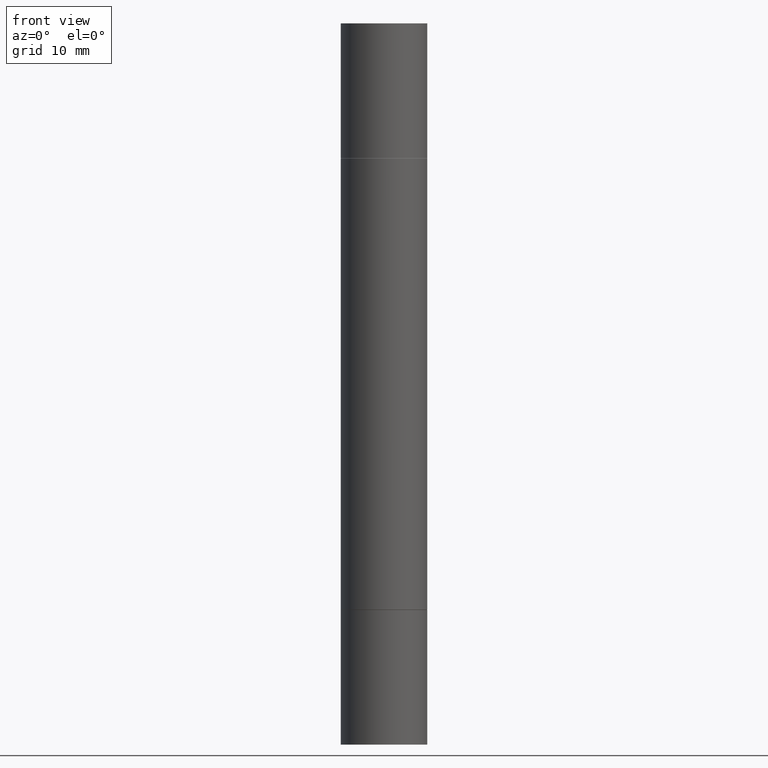
[diagram: clean part render]
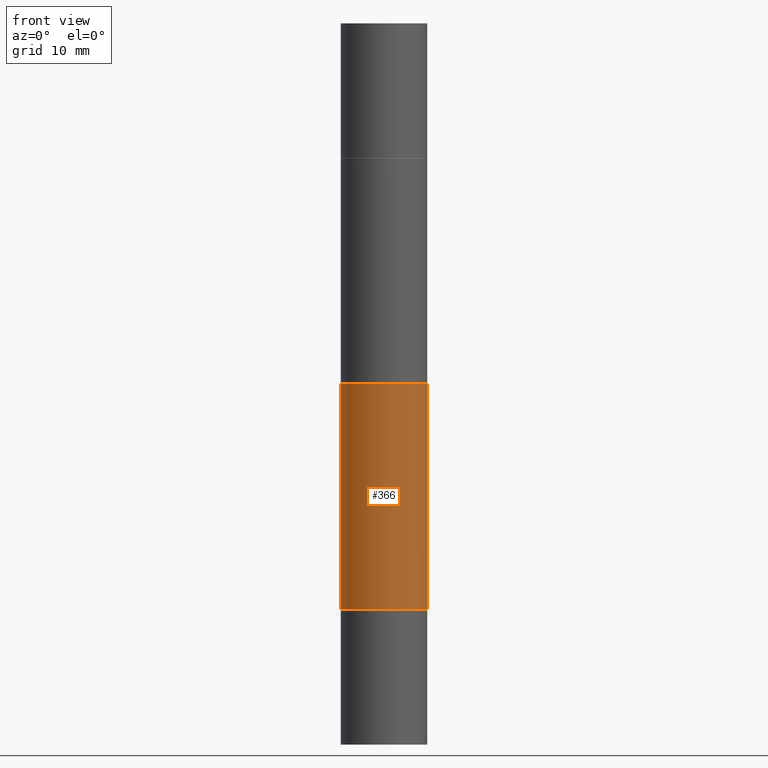
[diagram: same view with one face highlighted and labeled with its STEP entity id]
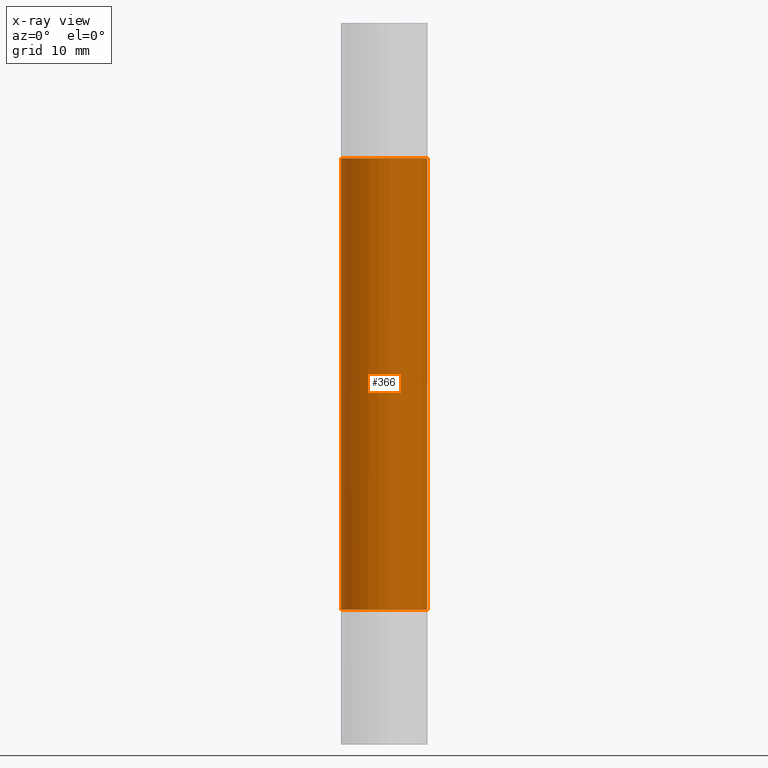
[diagram: x-ray of the same camera — body ghosted, the highlighted face saturated]
A machine part, front view. The second image highlights one B-rep face of the part: STEP entity #366.
The next image is the same camera in x-ray: the body ghosted, the highlighted face saturated — about 0% of this face is hidden behind the body in this view.
In plain terms, the highlighted cylindrical surface (partial cylindrical patch) has radius 4.4996 mm, axis along (-0, -0, -1).
Its self-contained STEP definition (entity closure, byte-faithful):
#15 = EDGE_CURVE ( 'NONE', #341, #444, #582, .T. ) ;
#35 = EDGE_LOOP ( 'NONE', ( #251, #83, #352, #333 ) ) ;
#46 = DIRECTION ( 'NONE',  ( 1.000000000000000000, -6.982962677686265922E-15, 0.000000000000000000 ) ) ;
#56 = CYLINDRICAL_SURFACE ( 'NONE', #60, 0.1771499999999998909 ) ;
#60 = AXIS2_PLACEMENT_3D ( 'NONE', #310, #356, #46 ) ;
#82 = DIRECTION ( 'NONE',  ( 2.445468806185136597E-29, 3.492890411551752677E-15, 1.000000000000000000 ) ) ;
#83 = ORIENTED_EDGE ( 'NONE', *, *, #112, .T. ) ;
#97 = VERTEX_POINT ( 'NONE', #507 ) ;
#112 = EDGE_CURVE ( 'NONE', #97, #341, #390, .T. ) ;
#119 = DIRECTION ( 'NONE',  ( -2.445468806185136597E-29, 3.491481338843145583E-15, 1.000000000000000000 ) ) ;
#126 = EDGE_CURVE ( 'NONE', #97, #514, #321, .T. ) ;
#195 = DIRECTION ( 'NONE',  ( -2.445468806185136877E-29, -3.492890411551753071E-15, -1.000000000000000000 ) ) ;
#199 = CARTESIAN_POINT ( 'NONE',  ( 0.1771500000000000019, -3.163725568664010262E-15, -0.5521999999999996911 ) ) ;
#224 = DIRECTION ( 'NONE',  ( 1.000000000000000000, -6.982962677686266711E-15, 0.000000000000000000 ) ) ;
#225 = AXIS2_PLACEMENT_3D ( 'NONE', #588, #119, #224 ) ;
#227 = CARTESIAN_POINT ( 'NONE',  ( -0.1771499999999998909, -9.096389231977797770E-15, -2.952799999999998981 ) ) ;
#234 = DIRECTION ( 'NONE',  ( -2.445468806185136877E-29, -3.492890411551753071E-15, -1.000000000000000000 ) ) ;
#251 = ORIENTED_EDGE ( 'NONE', *, *, #126, .F. ) ;
#254 = VECTOR ( 'NONE', #195, 39.37007874015748143 ) ;
#261 = VECTOR ( 'NONE', #234, 39.37007874015748143 ) ;
#282 = DIRECTION ( 'NONE',  ( 1.000000000000000000, -6.982962677686266711E-15, 0.000000000000000000 ) ) ;
#310 = CARTESIAN_POINT ( 'NONE',  ( 0.000000000000000000, -1.031172645228302408E-14, -2.952799999999998981 ) ) ;
#311 = CARTESIAN_POINT ( 'NONE',  ( -0.1771499999999999742, -3.939485828362789800E-15, -2.400599999999999401 ) ) ;
#321 = CIRCLE ( 'NONE', #448, 0.1771500000000000019 ) ;
#333 = ORIENTED_EDGE ( 'NONE', *, *, #568, .F. ) ;
#341 = VERTEX_POINT ( 'NONE', #311 ) ;
#352 = ORIENTED_EDGE ( 'NONE', *, *, #15, .T. ) ;
#356 = DIRECTION ( 'NONE',  ( -2.445468806185136597E-29, -3.492890411551752677E-15, -1.000000000000000000 ) ) ;
#366 = ADVANCED_FACE ( 'NONE', ( #464 ), #56, .T. ) ;
#390 = LINE ( 'NONE', #227, #261 ) ;
#392 = CARTESIAN_POINT ( 'NONE',  ( 0.1771500000000000019, -9.618681940378976650E-15, -2.400599999999999401 ) ) ;
#444 = VERTEX_POINT ( 'NONE', #392 ) ;
#448 = AXIS2_PLACEMENT_3D ( 'NONE', #611, #82, #282 ) ;
#464 = FACE_OUTER_BOUND ( 'NONE', #35, .T. ) ;
#486 = LINE ( 'NONE', #491, #254 ) ;
#491 = CARTESIAN_POINT ( 'NONE',  ( 0.1771499999999998909, -1.154875829063514490E-14, -2.952799999999998981 ) ) ;
#507 = CARTESIAN_POINT ( 'NONE',  ( -0.1771500000000000019, -7.113565100066610661E-16, -0.5521999999999996911 ) ) ;
#514 = VERTEX_POINT ( 'NONE', #199 ) ;
#568 = EDGE_CURVE ( 'NONE', #514, #444, #486, .T. ) ;
#582 = CIRCLE ( 'NONE', #225, 0.1771500000000000019 ) ;
#588 = CARTESIAN_POINT ( 'NONE',  ( 5.870592416128037625E-29, -8.381650102026854256E-15, -2.400599999999999401 ) ) ;
#611 = CARTESIAN_POINT ( 'NONE',  ( 5.870592416128037625E-29, -1.926693730311889446E-15, -0.5521999999999996911 ) ) ;